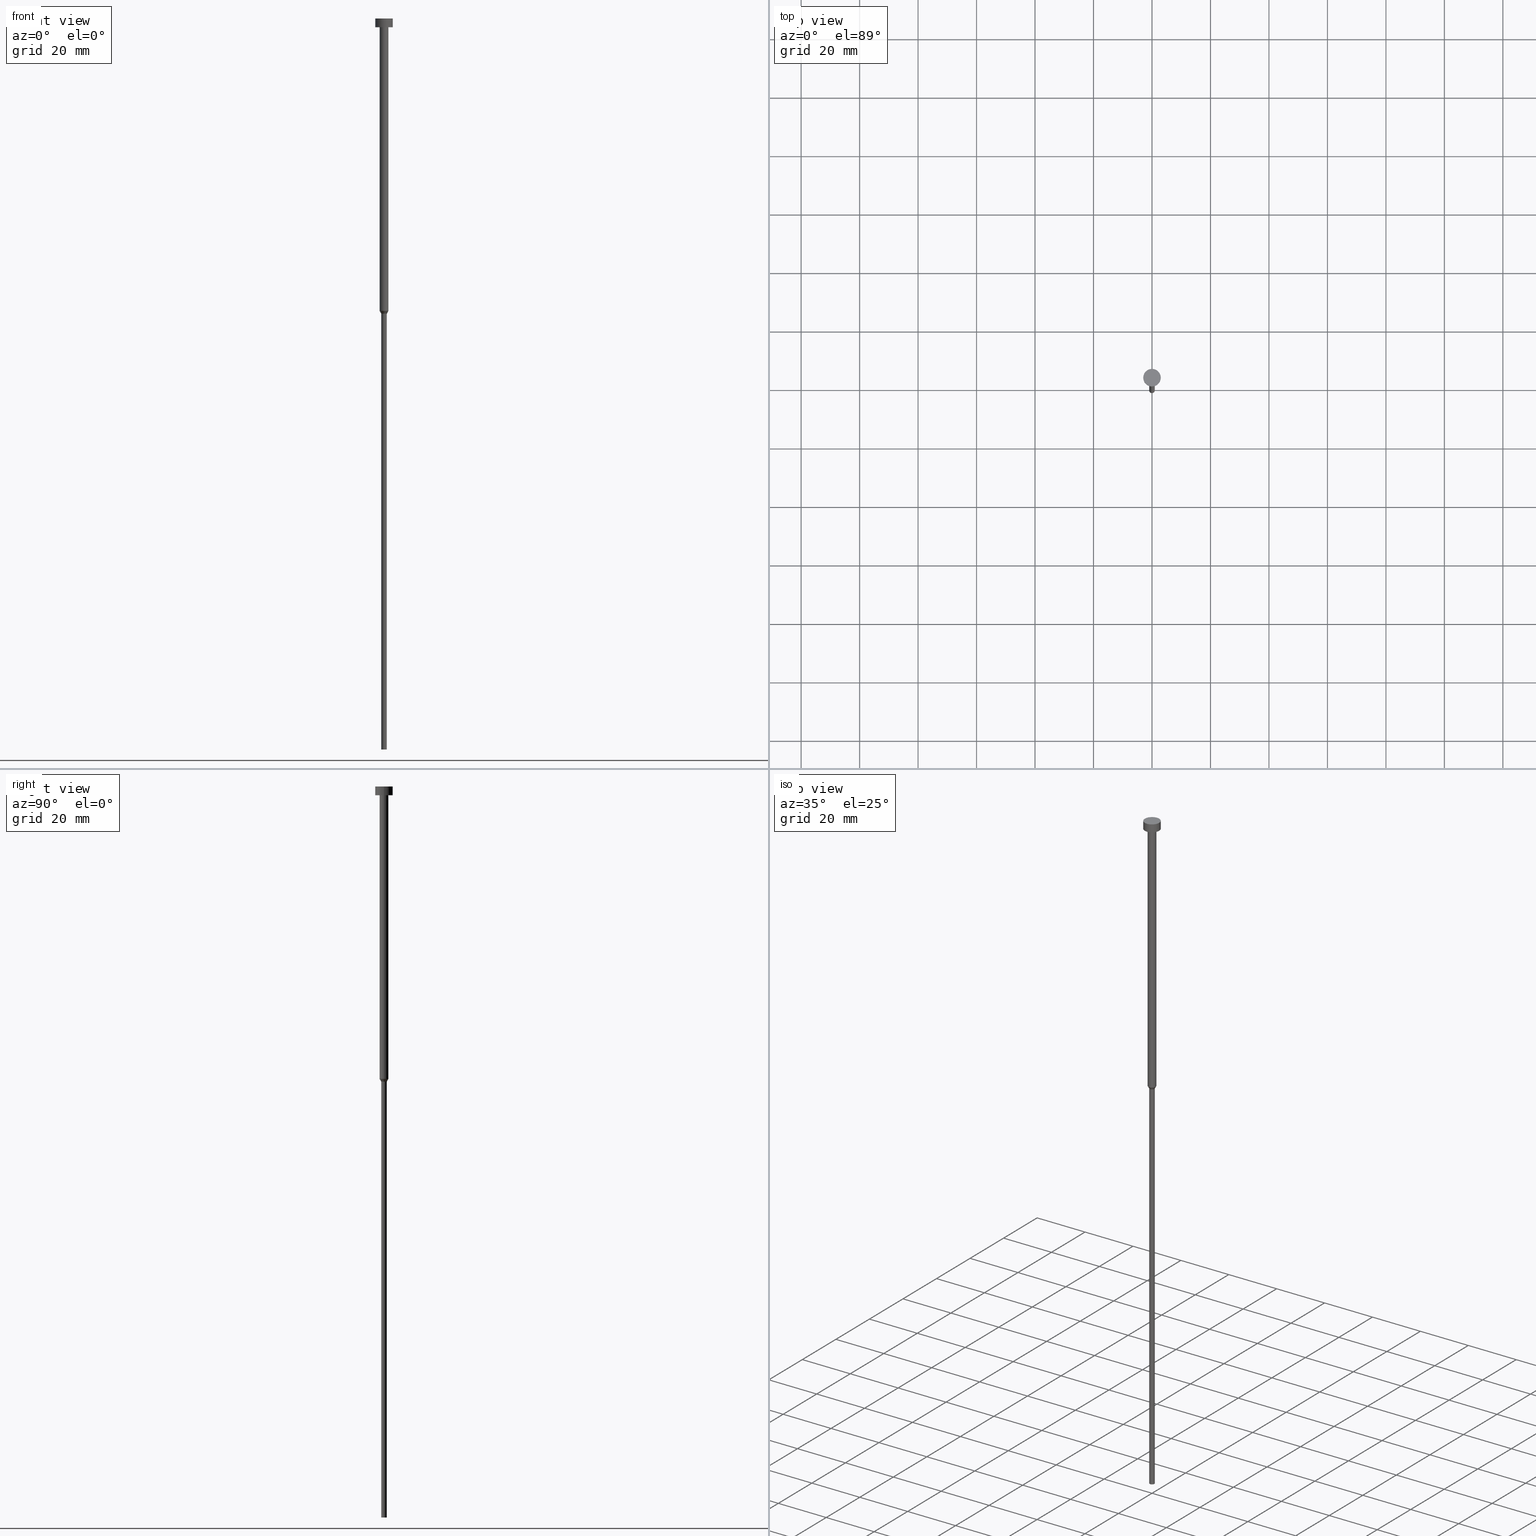
[diagram: canonical four-view strip — front | top / right | iso, engineering-drawing reading convention]
A machine part, canonical four-view strip (front | top / right | iso — engineering-drawing reading convention). The complete STEP part file that produces these views, byte-faithful:
ISO-10303-21;
HEADER;
FILE_DESCRIPTION (( 'STEP AP203' ),
    '1' );
FILE_NAME ('a4c9.STEP',
    '2023-02-13T09:01:24',
    ( '' ),
    ( '' ),
    'SwSTEP 2.0',
    'SolidWorks 2019',
    '' );
FILE_SCHEMA (( 'CONFIG_CONTROL_DESIGN' ));
ENDSEC;

DATA;
#1 = ORIENTED_EDGE ( 'NONE', *, *, #194, .T. ) ;
#2 = MANIFOLD_SOLID_BREP ( 'Rotovat1', #221 ) ;
#3 = CARTESIAN_POINT ( 'NONE',  ( 0.000000000000000000, 0.000000000000000000, -100.0000000000000000 ) ) ;
#4 = DATE_TIME_ROLE ( 'creation_date' ) ;
#5 = LINE ( 'NONE', #98, #318 ) ;
#6 = ORIENTED_EDGE ( 'NONE', *, *, #353, .T. ) ;
#7 = EDGE_CURVE ( 'NONE', #134, #35, #20, .T. ) ;
#8 = CIRCLE ( 'NONE', #208, 1.500000000000000000 ) ;
#9 = EDGE_LOOP ( 'NONE', ( #259, #47 ) ) ;
#10 = VECTOR ( 'NONE', #306, 1000.000000000000000 ) ;
#11 = DIRECTION ( 'NONE',  ( 1.000000000000000000, 0.000000000000000000, 0.000000000000000000 ) ) ;
#12 = CARTESIAN_POINT ( 'NONE',  ( 0.9500000000000000666, 0.000000000000000000, -100.9526279441628702 ) ) ;
#13 = FACE_OUTER_BOUND ( 'NONE', #331, .T. ) ;
#14 = ORIENTED_EDGE ( 'NONE', *, *, #270, .F. ) ;
#15 = ADVANCED_FACE ( 'NONE', ( #265 ), #146, .T. ) ;
#16 = DIRECTION ( 'NONE',  ( -0.000000000000000000, -0.000000000000000000, 1.000000000000000000 ) ) ;
#17 = CIRCLE ( 'NONE', #215, 1.500000000000000000 ) ;
#18 = ORIENTED_EDGE ( 'NONE', *, *, #7, .T. ) ;
#19 = EDGE_CURVE ( 'NONE', #151, #254, #354, .T. ) ;
#20 = LINE ( 'NONE', #65, #23 ) ;
#21 = ORIENTED_EDGE ( 'NONE', *, *, #204, .F. ) ;
#22 = DIRECTION ( 'NONE',  ( 1.000000000000000000, 0.000000000000000000, 0.000000000000000000 ) ) ;
#23 = VECTOR ( 'NONE', #169, 1000.000000000000000 ) ;
#24 = DIRECTION ( 'NONE',  ( -0.000000000000000000, -0.000000000000000000, 1.000000000000000000 ) ) ;
#25 = AXIS2_PLACEMENT_3D ( 'NONE', #216, #292, #87 ) ;
#26 = LINE ( 'NONE', #323, #286 ) ;
#27 = DIRECTION ( 'NONE',  ( 0.5000000000000046629, 0.000000000000000000, 0.8660254037844359321 ) ) ;
#28 = FACE_OUTER_BOUND ( 'NONE', #200, .T. ) ;
#29 = PRODUCT_RELATED_PRODUCT_CATEGORY ( 'detail', '', ( #59 ) ) ;
#30 = CARTESIAN_POINT ( 'NONE',  ( 0.000000000000000000, -3.000000000000000000, -3.000000000000000888 ) ) ;
#31 = CARTESIAN_POINT ( 'NONE',  ( -3.000000000000000000, 3.673940397442059868E-16, -3.673940397442059868E-16 ) ) ;
#32 = VECTOR ( 'NONE', #24, 1000.000000000000000 ) ;
#33 = LOCAL_TIME ( 10, 1, 24.00000000000000000, #272 ) ;
#34 = DIRECTION ( 'NONE',  ( 1.000000000000000000, 0.000000000000000000, 0.000000000000000000 ) ) ;
#35 = VERTEX_POINT ( 'NONE', #69 ) ;
#36 = DIRECTION ( 'NONE',  ( 1.000000000000000000, 0.000000000000000000, 0.000000000000000000 ) ) ;
#37 = DIRECTION ( 'NONE',  ( 0.000000000000000000, -0.000000000000000000, 1.000000000000000000 ) ) ;
#38 = DIRECTION ( 'NONE',  ( -0.000000000000000000, -0.000000000000000000, 1.000000000000000000 ) ) ;
#39 = CALENDAR_DATE ( 2023, 13, 2 ) ;
#40 = VERTEX_POINT ( 'NONE', #31 ) ;
#41 = DIRECTION ( 'NONE',  ( -0.5000000000000046629, 6.123233995736822735E-17, 0.8660254037844359321 ) ) ;
#42 = APPROVAL_ROLE ( '' ) ;
#43 = AXIS2_PLACEMENT_3D ( 'NONE', #105, #333, #247 ) ;
#44 = VERTEX_POINT ( 'NONE', #212 ) ;
#45 = AXIS2_PLACEMENT_3D ( 'NONE', #152, #336, #250 ) ;
#46 = APPROVAL_STATUS ( 'not_yet_approved' ) ;
#47 = ORIENTED_EDGE ( 'NONE', *, *, #67, .T. ) ;
#48 = EDGE_CURVE ( 'NONE', #44, #227, #26, .T. ) ;
#49 = DATE_AND_TIME ( #99, #33 ) ;
#50 = AXIS2_PLACEMENT_3D ( 'NONE', #174, #37, #100 ) ;
#51 = APPROVAL_DATE_TIME ( #282, #77 ) ;
#52 =( GEOMETRIC_REPRESENTATION_CONTEXT ( 3 ) GLOBAL_UNCERTAINTY_ASSIGNED_CONTEXT ( ( #107 ) ) GLOBAL_UNIT_ASSIGNED_CONTEXT ( ( #224, #235, #207 ) ) REPRESENTATION_CONTEXT ( 'NONE', 'WORKASPACE' ) );
#53 = DIRECTION ( 'NONE',  ( -0.000000000000000000, -0.000000000000000000, 1.000000000000000000 ) ) ;
#54 = ADVANCED_FACE ( 'NONE', ( #291 ), #120, .T. ) ;
#55 = ORIENTED_EDGE ( 'NONE', *, *, #225, .T. ) ;
#56 = PERSON_AND_ORGANIZATION_ROLE ( 'design_owner' ) ;
#57 = ORIENTED_EDGE ( 'NONE', *, *, #302, .T. ) ;
#58 = CARTESIAN_POINT ( 'NONE',  ( 0.000000000000000000, 0.000000000000000000, 0.000000000000000000 ) ) ;
#59 = PRODUCT ( 'a4c9', 'a4c9', '', ( #83 ) ) ;
#60 = CARTESIAN_POINT ( 'NONE',  ( 0.9499999999999998446, 0.000000000000000000, -250.0000000000000000 ) ) ;
#61 = EDGE_CURVE ( 'NONE', #263, #134, #317, .T. ) ;
#62 = DIRECTION ( 'NONE',  ( -0.000000000000000000, -0.000000000000000000, 1.000000000000000000 ) ) ;
#63 = CARTESIAN_POINT ( 'NONE',  ( 3.000000000000000000, 0.000000000000000000, 0.000000000000000000 ) ) ;
#64 = CIRCLE ( 'NONE', #190, 0.9500000000000000666 ) ;
#65 = CARTESIAN_POINT ( 'NONE',  ( 1.500000000000000000, 0.000000000000000000, 0.000000000000000000 ) ) ;
#66 = CARTESIAN_POINT ( 'NONE',  ( 0.000000000000000000, 0.000000000000000000, -250.0000000000000000 ) ) ;
#67 = EDGE_CURVE ( 'NONE', #40, #254, #136, .T. ) ;
#68 = DIRECTION ( 'NONE',  ( 1.000000000000000000, 0.000000000000000000, 0.000000000000000000 ) ) ;
#69 = CARTESIAN_POINT ( 'NONE',  ( 1.500000000000000000, 0.000000000000000000, -3.000000000000000888 ) ) ;
#70 = CALENDAR_DATE ( 2023, 13, 2 ) ;
#71 = CIRCLE ( 'NONE', #86, 1.500000000000000000 ) ;
#72 = PLANE ( 'NONE',  #50 ) ;
#73 = EDGE_LOOP ( 'NONE', ( #108, #85, #320, #79 ) ) ;
#74 = CARTESIAN_POINT ( 'NONE',  ( 0.000000000000000000, 0.000000000000000000, 0.000000000000000000 ) ) ;
#75 = PERSON_AND_ORGANIZATION ( #113, #342 ) ;
#76 = ORIENTED_EDGE ( 'NONE', *, *, #234, .T. ) ;
#77 = APPROVAL ( #231, 'NEUR�EN�' ) ;
#78 = LOCAL_TIME ( 10, 1, 24.00000000000000000, #205 ) ;
#79 = ORIENTED_EDGE ( 'NONE', *, *, #67, .F. ) ;
#80 = APPROVAL_STATUS ( 'not_yet_approved' ) ;
#81 = CARTESIAN_POINT ( 'NONE',  ( 0.000000000000000000, 0.000000000000000000, -3.673940397442059868E-16 ) ) ;
#82 = AXIS2_PLACEMENT_3D ( 'NONE', #338, #133, #226 ) ;
#83 = MECHANICAL_CONTEXT ( 'NONE', #141, 'mechanical' ) ;
#84 = CIRCLE ( 'NONE', #191, 3.000000000000000000 ) ;
#85 = ORIENTED_EDGE ( 'NONE', *, *, #327, .T. ) ;
#86 = AXIS2_PLACEMENT_3D ( 'NONE', #179, #269, #126 ) ;
#87 = DIRECTION ( 'NONE',  ( 1.000000000000000000, 0.000000000000000000, 0.000000000000000000 ) ) ;
#88 = ADVANCED_FACE ( 'NONE', ( #28 ), #297, .T. ) ;
#89 = AXIS2_PLACEMENT_3D ( 'NONE', #58, #142, #149 ) ;
#90 = DIRECTION ( 'NONE',  ( -0.000000000000000000, -0.000000000000000000, 1.000000000000000000 ) ) ;
#91 = ORIENTED_EDGE ( 'NONE', *, *, #213, .F. ) ;
#92 = CARTESIAN_POINT ( 'NONE',  ( 0.000000000000000000, 0.000000000000000000, -3.673940397442059868E-16 ) ) ;
#93 = ORIENTED_EDGE ( 'NONE', *, *, #194, .F. ) ;
#94 = PRODUCT_DEFINITION ( 'NEZN�M�', '', #260, #137 ) ;
#95 = CIRCLE ( 'NONE', #139, 3.000000000000000000 ) ;
#96 = CC_DESIGN_APPROVAL ( #77, ( #94 ) ) ;
#97 = CARTESIAN_POINT ( 'NONE',  ( 1.500000000000000000, 0.000000000000000000, -100.0000000000000000 ) ) ;
#98 = CARTESIAN_POINT ( 'NONE',  ( -1.500000000000000000, 1.836970198721029934E-16, -100.0000000000000000 ) ) ;
#99 = CALENDAR_DATE ( 2023, 13, 2 ) ;
#100 = DIRECTION ( 'NONE',  ( 1.000000000000000000, 0.000000000000000000, 0.000000000000000000 ) ) ;
#101 = ORIENTED_EDGE ( 'NONE', *, *, #130, .F. ) ;
#102 = LINE ( 'NONE', #131, #10 ) ;
#103 = CC_DESIGN_PERSON_AND_ORGANIZATION_ASSIGNMENT ( #198, #104, ( #260 ) ) ;
#104 = PERSON_AND_ORGANIZATION_ROLE ( 'design_supplier' ) ;
#105 = CARTESIAN_POINT ( 'NONE',  ( 0.000000000000000000, 0.000000000000000000, 0.000000000000000000 ) ) ;
#106 = AXIS2_PLACEMENT_3D ( 'NONE', #110, #273, #252 ) ;
#107 = UNCERTAINTY_MEASURE_WITH_UNIT (LENGTH_MEASURE( 1.000000000000000082E-05 ), #224, 'distance_accuracy_value', 'NONE');
#108 = ORIENTED_EDGE ( 'NONE', *, *, #234, .F. ) ;
#109 = AXIS2_PLACEMENT_3D ( 'NONE', #311, #262, #22 ) ;
#110 = CARTESIAN_POINT ( 'NONE',  ( 0.000000000000000000, 0.000000000000000000, -250.0000000000000000 ) ) ;
#111 = PERSON_AND_ORGANIZATION ( #113, #342 ) ;
#112 = ORIENTED_EDGE ( 'NONE', *, *, #213, .T. ) ;
#113 = PERSON ( 'NEUR�EN�', 'NEUR�EN�', 'NEUR�EN�', ('NEUR�EN�'), ('NEUR�EN�'), ('NEUR�EN�') ) ;
#114 = ADVANCED_FACE ( 'NONE', ( #246 ), #72, .T. ) ;
#115 = AXIS2_PLACEMENT_3D ( 'NONE', #220, #328, #150 ) ;
#116 = CC_DESIGN_PERSON_AND_ORGANIZATION_ASSIGNMENT ( #308, #233, ( #94 ) ) ;
#117 = DIRECTION ( 'NONE',  ( -0.000000000000000000, -0.000000000000000000, 1.000000000000000000 ) ) ;
#118 = CARTESIAN_POINT ( 'NONE',  ( 0.000000000000000000, 0.000000000000000000, 0.000000000000000000 ) ) ;
#119 = DIRECTION ( 'NONE',  ( 0.000000000000000000, 0.000000000000000000, -1.000000000000000000 ) ) ;
#120 = CYLINDRICAL_SURFACE ( 'NONE', #25, 1.500000000000000000 ) ;
#121 = EDGE_LOOP ( 'NONE', ( #315, #237 ) ) ;
#122 = CYLINDRICAL_SURFACE ( 'NONE', #43, 0.9499999999999999556 ) ;
#123 = EDGE_CURVE ( 'NONE', #151, #181, #95, .T. ) ;
#124 = DIRECTION ( 'NONE',  ( -0.000000000000000000, -0.000000000000000000, 1.000000000000000000 ) ) ;
#125 = ORIENTED_EDGE ( 'NONE', *, *, #61, .T. ) ;
#126 = DIRECTION ( 'NONE',  ( 1.000000000000000000, 0.000000000000000000, 0.000000000000000000 ) ) ;
#127 = CIRCLE ( 'NONE', #166, 0.9499999999999998446 ) ;
#128 = CONICAL_SURFACE ( 'NONE', #115, 1.500000000000000000, 0.5235987755983042558 ) ;
#129 = FACE_OUTER_BOUND ( 'NONE', #261, .T. ) ;
#130 = EDGE_CURVE ( 'NONE', #263, #209, #258, .T. ) ;
#131 = CARTESIAN_POINT ( 'NONE',  ( 0.9499999999999999556, 0.000000000000000000, 0.000000000000000000 ) ) ;
#132 = DATE_TIME_ROLE ( 'classification_date' ) ;
#133 = DIRECTION ( 'NONE',  ( -0.000000000000000000, -0.000000000000000000, 1.000000000000000000 ) ) ;
#134 = VERTEX_POINT ( 'NONE', #97 ) ;
#135 = APPROVAL_DATE_TIME ( #185, #219 ) ;
#136 = CIRCLE ( 'NONE', #283, 3.000000000000000000 ) ;
#137 = DESIGN_CONTEXT ( 'detailed design', #249, 'design' ) ;
#138 = APPLICATION_PROTOCOL_DEFINITION ( 'international standard', 'config_control_design', 1994, #249 ) ;
#139 = AXIS2_PLACEMENT_3D ( 'NONE', #300, #16, #178 ) ;
#140 = ADVANCED_FACE ( 'NONE', ( #13 ), #153, .T. ) ;
#141 = APPLICATION_CONTEXT ( 'configuration controlled 3d designs of mechanical parts and assemblies' ) ;
#142 = DIRECTION ( 'NONE',  ( -0.000000000000000000, -0.000000000000000000, 1.000000000000000000 ) ) ;
#143 = CC_DESIGN_SECURITY_CLASSIFICATION ( #229, ( #260 ) ) ;
#144 = FACE_OUTER_BOUND ( 'NONE', #188, .T. ) ;
#145 = CARTESIAN_POINT ( 'NONE',  ( 0.000000000000000000, 0.000000000000000000, 0.000000000000000000 ) ) ;
#146 = CYLINDRICAL_SURFACE ( 'NONE', #89, 3.000000000000000000 ) ;
#147 = VECTOR ( 'NONE', #307, 1000.000000000000000 ) ;
#148 = CC_DESIGN_PERSON_AND_ORGANIZATION_ASSIGNMENT ( #111, #56, ( #59 ) ) ;
#149 = DIRECTION ( 'NONE',  ( 1.000000000000000000, 0.000000000000000000, 0.000000000000000000 ) ) ;
#150 = DIRECTION ( 'NONE',  ( 1.000000000000000000, 0.000000000000000000, 0.000000000000000000 ) ) ;
#151 = VERTEX_POINT ( 'NONE', #304 ) ;
#152 = CARTESIAN_POINT ( 'NONE',  ( 0.000000000000000000, 0.000000000000000000, -100.0000000000000000 ) ) ;
#153 = PLANE ( 'NONE',  #106 ) ;
#154 = ORIENTED_EDGE ( 'NONE', *, *, #130, .T. ) ;
#155 = CARTESIAN_POINT ( 'NONE',  ( -1.500000000000000000, 1.836970198721029934E-16, -100.0000000000000000 ) ) ;
#156 = AXIS2_PLACEMENT_3D ( 'NONE', #30, #119, #293 ) ;
#157 = LOCAL_TIME ( 10, 1, 24.00000000000000000, #337 ) ;
#158 = EDGE_LOOP ( 'NONE', ( #1, #218, #335, #206 ) ) ;
#159 = ORIENTED_EDGE ( 'NONE', *, *, #290, .T. ) ;
#160 = ORIENTED_EDGE ( 'NONE', *, *, #302, .F. ) ;
#161 = SHAPE_DEFINITION_REPRESENTATION ( #313, #352 ) ;
#162 = AXIS2_PLACEMENT_3D ( 'NONE', #172, #330, #192 ) ;
#163 = EDGE_LOOP ( 'NONE', ( #285, #76, #310, #314 ) ) ;
#164 = EDGE_CURVE ( 'NONE', #44, #232, #341, .T. ) ;
#165 = CARTESIAN_POINT ( 'NONE',  ( -3.000000000000000000, 3.673940397442059868E-16, 0.000000000000000000 ) ) ;
#166 = AXIS2_PLACEMENT_3D ( 'NONE', #66, #53, #236 ) ;
#167 = DIRECTION ( 'NONE',  ( 1.000000000000000000, 0.000000000000000000, 0.000000000000000000 ) ) ;
#168 = CONICAL_SURFACE ( 'NONE', #45, 1.500000000000000000, 0.5235987755983042558 ) ;
#169 = DIRECTION ( 'NONE',  ( -0.000000000000000000, -0.000000000000000000, 1.000000000000000000 ) ) ;
#170 = LINE ( 'NONE', #240, #228 ) ;
#171 = EDGE_CURVE ( 'NONE', #254, #40, #266, .T. ) ;
#172 = CARTESIAN_POINT ( 'NONE',  ( 0.000000000000000000, 0.000000000000000000, -100.0000000000000000 ) ) ;
#173 = APPROVAL_PERSON_ORGANIZATION ( #275, #219, #42 ) ;
#174 = CARTESIAN_POINT ( 'NONE',  ( 0.000000000000000000, 0.000000000000000000, -1.836970198721029934E-16 ) ) ;
#175 = DIRECTION ( 'NONE',  ( 1.000000000000000000, 0.000000000000000000, 0.000000000000000000 ) ) ;
#176 = ADVANCED_FACE ( 'NONE', ( #340, #186 ), #248, .T. ) ;
#177 = CALENDAR_DATE ( 2023, 13, 2 ) ;
#178 = DIRECTION ( 'NONE',  ( 1.000000000000000000, 0.000000000000000000, 0.000000000000000000 ) ) ;
#179 = CARTESIAN_POINT ( 'NONE',  ( 0.000000000000000000, 0.000000000000000000, -3.000000000000000888 ) ) ;
#180 = DIRECTION ( 'NONE',  ( -0.000000000000000000, -0.000000000000000000, 1.000000000000000000 ) ) ;
#181 = VERTEX_POINT ( 'NONE', #351 ) ;
#182 = AXIS2_PLACEMENT_3D ( 'NONE', #118, #326, #332 ) ;
#183 = ORIENTED_EDGE ( 'NONE', *, *, #164, .F. ) ;
#184 = CC_DESIGN_DATE_AND_TIME_ASSIGNMENT ( #294, #4, ( #94 ) ) ;
#185 = DATE_AND_TIME ( #39, #157 ) ;
#186 = FACE_OUTER_BOUND ( 'NONE', #344, .T. ) ;
#187 = CC_DESIGN_PERSON_AND_ORGANIZATION_ASSIGNMENT ( #75, #251, ( #260 ) ) ;
#188 = EDGE_LOOP ( 'NONE', ( #101, #125, #18, #21 ) ) ;
#189 = CALENDAR_DATE ( 2023, 13, 2 ) ;
#190 = AXIS2_PLACEMENT_3D ( 'NONE', #350, #62, #167 ) ;
#191 = AXIS2_PLACEMENT_3D ( 'NONE', #253, #124, #11 ) ;
#192 = DIRECTION ( 'NONE',  ( 1.000000000000000000, 0.000000000000000000, 0.000000000000000000 ) ) ;
#193 = LINE ( 'NONE', #165, #32 ) ;
#194 = EDGE_CURVE ( 'NONE', #232, #44, #127, .T. ) ;
#195 = DIRECTION ( 'NONE',  ( -0.000000000000000000, -0.000000000000000000, 1.000000000000000000 ) ) ;
#196 = CARTESIAN_POINT ( 'NONE',  ( 3.000000000000000000, 0.000000000000000000, -3.673940397442059868E-16 ) ) ;
#197 = AXIS2_PLACEMENT_3D ( 'NONE', #74, #217, #274 ) ;
#198 = PERSON_AND_ORGANIZATION ( #113, #342 ) ;
#199 = FACE_OUTER_BOUND ( 'NONE', #305, .T. ) ;
#200 = EDGE_LOOP ( 'NONE', ( #347, #312, #6, #281 ) ) ;
#201 = CARTESIAN_POINT ( 'NONE',  ( 0.000000000000000000, 0.000000000000000000, -100.9526279441628702 ) ) ;
#202 = APPROVAL_DATE_TIME ( #223, #334 ) ;
#203 = LOCAL_TIME ( 10, 1, 24.00000000000000000, #222 ) ;
#204 = EDGE_CURVE ( 'NONE', #209, #35, #8, .T. ) ;
#205 = COORDINATED_UNIVERSAL_TIME_OFFSET ( 1, 0, .AHEAD. ) ;
#206 = ORIENTED_EDGE ( 'NONE', *, *, #353, .F. ) ;
#207 =( NAMED_UNIT ( * ) SI_UNIT ( $, .STERADIAN. ) SOLID_ANGLE_UNIT ( ) );
#208 = AXIS2_PLACEMENT_3D ( 'NONE', #238, #288, #242 ) ;
#209 = VERTEX_POINT ( 'NONE', #289 ) ;
#210 = COORDINATED_UNIVERSAL_TIME_OFFSET ( 1, 0, .AHEAD. ) ;
#211 = CARTESIAN_POINT ( 'NONE',  ( -0.9500000000000001776, 1.163414459189985929E-16, -100.9526279441628702 ) ) ;
#212 = CARTESIAN_POINT ( 'NONE',  ( -0.9499999999999998446, 1.163414459189985682E-16, -250.0000000000000000 ) ) ;
#213 = EDGE_CURVE ( 'NONE', #278, #134, #170, .T. ) ;
#214 = VECTOR ( 'NONE', #117, 1000.000000000000000 ) ;
#215 = AXIS2_PLACEMENT_3D ( 'NONE', #3, #38, #36 ) ;
#216 = CARTESIAN_POINT ( 'NONE',  ( 0.000000000000000000, 0.000000000000000000, 0.000000000000000000 ) ) ;
#217 = DIRECTION ( 'NONE',  ( -0.000000000000000000, -0.000000000000000000, 1.000000000000000000 ) ) ;
#218 = ORIENTED_EDGE ( 'NONE', *, *, #48, .T. ) ;
#219 = APPROVAL ( #80, 'NEUR�EN�' ) ;
#220 = CARTESIAN_POINT ( 'NONE',  ( 0.000000000000000000, 0.000000000000000000, -100.0000000000000000 ) ) ;
#221 = CLOSED_SHELL ( 'NONE', ( #276, #54, #348, #243, #140, #88, #296, #239, #176, #15, #114 ) ) ;
#222 = COORDINATED_UNIVERSAL_TIME_OFFSET ( 1, 0, .AHEAD. ) ;
#223 = DATE_AND_TIME ( #177, #203 ) ;
#224 =( LENGTH_UNIT ( ) NAMED_UNIT ( * ) SI_UNIT ( .MILLI., .METRE. ) );
#225 = EDGE_CURVE ( 'NONE', #278, #227, #64, .T. ) ;
#226 = DIRECTION ( 'NONE',  ( 1.000000000000000000, 0.000000000000000000, 0.000000000000000000 ) ) ;
#227 = VERTEX_POINT ( 'NONE', #211 ) ;
#228 = VECTOR ( 'NONE', #27, 1000.000000000000000 ) ;
#229 = SECURITY_CLASSIFICATION ( '', '', #257 ) ;
#230 = ORIENTED_EDGE ( 'NONE', *, *, #290, .F. ) ;
#231 = APPROVAL_STATUS ( 'not_yet_approved' ) ;
#232 = VERTEX_POINT ( 'NONE', #60 ) ;
#233 = PERSON_AND_ORGANIZATION_ROLE ( 'creator' ) ;
#234 = EDGE_CURVE ( 'NONE', #181, #40, #193, .T. ) ;
#235 =( NAMED_UNIT ( * ) PLANE_ANGLE_UNIT ( ) SI_UNIT ( $, .RADIAN. ) );
#236 = DIRECTION ( 'NONE',  ( 1.000000000000000000, 0.000000000000000000, 0.000000000000000000 ) ) ;
#237 = ORIENTED_EDGE ( 'NONE', *, *, #204, .T. ) ;
#238 = CARTESIAN_POINT ( 'NONE',  ( 0.000000000000000000, 0.000000000000000000, -3.000000000000000888 ) ) ;
#239 = ADVANCED_FACE ( 'NONE', ( #144 ), #244, .T. ) ;
#240 = CARTESIAN_POINT ( 'NONE',  ( 1.500000000000000000, 0.000000000000000000, -100.0000000000000000 ) ) ;
#241 = APPROVAL_PERSON_ORGANIZATION ( #349, #77, #345 ) ;
#242 = DIRECTION ( 'NONE',  ( 1.000000000000000000, 0.000000000000000000, 0.000000000000000000 ) ) ;
#243 = ADVANCED_FACE ( 'NONE', ( #301 ), #122, .T. ) ;
#244 = CYLINDRICAL_SURFACE ( 'NONE', #182, 1.500000000000000000 ) ;
#245 = FACE_OUTER_BOUND ( 'NONE', #163, .T. ) ;
#246 = FACE_OUTER_BOUND ( 'NONE', #9, .T. ) ;
#247 = DIRECTION ( 'NONE',  ( 1.000000000000000000, 0.000000000000000000, 0.000000000000000000 ) ) ;
#248 = PLANE ( 'NONE',  #156 ) ;
#249 = APPLICATION_CONTEXT ( 'configuration controlled 3d designs of mechanical parts and assemblies' ) ;
#250 = DIRECTION ( 'NONE',  ( 1.000000000000000000, 0.000000000000000000, 0.000000000000000000 ) ) ;
#251 = PERSON_AND_ORGANIZATION_ROLE ( 'creator' ) ;
#252 = DIRECTION ( 'NONE',  ( -1.000000000000000000, 0.000000000000000000, -0.000000000000000000 ) ) ;
#253 = CARTESIAN_POINT ( 'NONE',  ( 0.000000000000000000, 0.000000000000000000, -3.000000000000000888 ) ) ;
#254 = VERTEX_POINT ( 'NONE', #196 ) ;
#255 = CYLINDRICAL_SURFACE ( 'NONE', #197, 3.000000000000000000 ) ;
#256 = EDGE_CURVE ( 'NONE', #227, #278, #277, .T. ) ;
#257 = SECURITY_CLASSIFICATION_LEVEL ( 'unclassified' ) ;
#258 = LINE ( 'NONE', #343, #147 ) ;
#259 = ORIENTED_EDGE ( 'NONE', *, *, #171, .T. ) ;
#260 = PRODUCT_DEFINITION_FORMATION_WITH_SPECIFIED_SOURCE ( 'LIBOVOLN�', '', #59, .NOT_KNOWN. ) ;
#261 = EDGE_LOOP ( 'NONE', ( #55, #57, #230, #91 ) ) ;
#262 = DIRECTION ( 'NONE',  ( 0.000000000000000000, 0.000000000000000000, 1.000000000000000000 ) ) ;
#263 = VERTEX_POINT ( 'NONE', #155 ) ;
#264 = CC_DESIGN_APPROVAL ( #334, ( #260 ) ) ;
#265 = FACE_OUTER_BOUND ( 'NONE', #73, .T. ) ;
#266 = CIRCLE ( 'NONE', #268, 3.000000000000000000 ) ;
#267 = CC_DESIGN_PERSON_AND_ORGANIZATION_ASSIGNMENT ( #309, #299, ( #229 ) ) ;
#268 = AXIS2_PLACEMENT_3D ( 'NONE', #81, #180, #280 ) ;
#269 = DIRECTION ( 'NONE',  ( -0.000000000000000000, -0.000000000000000000, 1.000000000000000000 ) ) ;
#270 = EDGE_CURVE ( 'NONE', #35, #209, #71, .T. ) ;
#271 = ORIENTED_EDGE ( 'NONE', *, *, #61, .F. ) ;
#272 = COORDINATED_UNIVERSAL_TIME_OFFSET ( 1, 0, .AHEAD. ) ;
#273 = DIRECTION ( 'NONE',  ( 0.000000000000000000, 0.000000000000000000, -1.000000000000000000 ) ) ;
#274 = DIRECTION ( 'NONE',  ( 1.000000000000000000, 0.000000000000000000, 0.000000000000000000 ) ) ;
#275 = PERSON_AND_ORGANIZATION ( #113, #342 ) ;
#276 = ADVANCED_FACE ( 'NONE', ( #245 ), #255, .T. ) ;
#277 = CIRCLE ( 'NONE', #325, 0.9500000000000000666 ) ;
#278 = VERTEX_POINT ( 'NONE', #12 ) ;
#279 = ORIENTED_EDGE ( 'NONE', *, *, #123, .F. ) ;
#280 = DIRECTION ( 'NONE',  ( 1.000000000000000000, 0.000000000000000000, 0.000000000000000000 ) ) ;
#281 = ORIENTED_EDGE ( 'NONE', *, *, #256, .F. ) ;
#282 = DATE_AND_TIME ( #189, #78 ) ;
#283 = AXIS2_PLACEMENT_3D ( 'NONE', #92, #90, #68 ) ;
#284 = CC_DESIGN_APPROVAL ( #219, ( #229 ) ) ;
#285 = ORIENTED_EDGE ( 'NONE', *, *, #123, .T. ) ;
#286 = VECTOR ( 'NONE', #324, 1000.000000000000000 ) ;
#287 = APPROVAL_PERSON_ORGANIZATION ( #329, #334, #303 ) ;
#288 = DIRECTION ( 'NONE',  ( -0.000000000000000000, -0.000000000000000000, 1.000000000000000000 ) ) ;
#289 = CARTESIAN_POINT ( 'NONE',  ( -1.500000000000000000, 1.836970198721029934E-16, -3.000000000000000888 ) ) ;
#290 = EDGE_CURVE ( 'NONE', #134, #263, #17, .T. ) ;
#291 = FACE_OUTER_BOUND ( 'NONE', #346, .T. ) ;
#292 = DIRECTION ( 'NONE',  ( -0.000000000000000000, -0.000000000000000000, 1.000000000000000000 ) ) ;
#293 = DIRECTION ( 'NONE',  ( -1.000000000000000000, 0.000000000000000000, -0.000000000000000000 ) ) ;
#294 = DATE_AND_TIME ( #70, #322 ) ;
#295 = ORIENTED_EDGE ( 'NONE', *, *, #7, .F. ) ;
#296 = ADVANCED_FACE ( 'NONE', ( #199 ), #128, .T. ) ;
#297 = CYLINDRICAL_SURFACE ( 'NONE', #321, 0.9499999999999999556 ) ;
#298 = ORIENTED_EDGE ( 'NONE', *, *, #256, .T. ) ;
#299 = PERSON_AND_ORGANIZATION_ROLE ( 'classification_officer' ) ;
#300 = CARTESIAN_POINT ( 'NONE',  ( 0.000000000000000000, 0.000000000000000000, -3.000000000000000888 ) ) ;
#301 = FACE_OUTER_BOUND ( 'NONE', #158, .T. ) ;
#302 = EDGE_CURVE ( 'NONE', #227, #263, #5, .T. ) ;
#303 = APPROVAL_ROLE ( '' ) ;
#304 = CARTESIAN_POINT ( 'NONE',  ( 3.000000000000000000, 0.000000000000000000, -3.000000000000000888 ) ) ;
#305 = EDGE_LOOP ( 'NONE', ( #160, #298, #112, #271 ) ) ;
#306 = DIRECTION ( 'NONE',  ( -0.000000000000000000, -0.000000000000000000, 1.000000000000000000 ) ) ;
#307 = DIRECTION ( 'NONE',  ( -0.000000000000000000, -0.000000000000000000, 1.000000000000000000 ) ) ;
#308 = PERSON_AND_ORGANIZATION ( #113, #342 ) ;
#309 = PERSON_AND_ORGANIZATION ( #113, #342 ) ;
#310 = ORIENTED_EDGE ( 'NONE', *, *, #171, .F. ) ;
#311 = CARTESIAN_POINT ( 'NONE',  ( 0.000000000000000000, 0.000000000000000000, 0.000000000000000000 ) ) ;
#312 = ORIENTED_EDGE ( 'NONE', *, *, #164, .T. ) ;
#313 = PRODUCT_DEFINITION_SHAPE ( 'NONE', 'NONE',  #94 ) ;
#314 = ORIENTED_EDGE ( 'NONE', *, *, #19, .F. ) ;
#315 = ORIENTED_EDGE ( 'NONE', *, *, #270, .T. ) ;
#316 = APPLICATION_PROTOCOL_DEFINITION ( 'international standard', 'config_control_design', 1994, #141 ) ;
#317 = CIRCLE ( 'NONE', #162, 1.500000000000000000 ) ;
#318 = VECTOR ( 'NONE', #41, 1000.000000000000000 ) ;
#319 = ORIENTED_EDGE ( 'NONE', *, *, #327, .F. ) ;
#320 = ORIENTED_EDGE ( 'NONE', *, *, #19, .T. ) ;
#321 = AXIS2_PLACEMENT_3D ( 'NONE', #145, #195, #34 ) ;
#322 = LOCAL_TIME ( 10, 1, 24.00000000000000000, #210 ) ;
#323 = CARTESIAN_POINT ( 'NONE',  ( -0.9499999999999999556, 1.163414459189985682E-16, 0.000000000000000000 ) ) ;
#324 = DIRECTION ( 'NONE',  ( -0.000000000000000000, -0.000000000000000000, 1.000000000000000000 ) ) ;
#325 = AXIS2_PLACEMENT_3D ( 'NONE', #201, #339, #175 ) ;
#326 = DIRECTION ( 'NONE',  ( -0.000000000000000000, -0.000000000000000000, 1.000000000000000000 ) ) ;
#327 = EDGE_CURVE ( 'NONE', #181, #151, #84, .T. ) ;
#328 = DIRECTION ( 'NONE',  ( -0.000000000000000000, -0.000000000000000000, 1.000000000000000000 ) ) ;
#329 = PERSON_AND_ORGANIZATION ( #113, #342 ) ;
#330 = DIRECTION ( 'NONE',  ( -0.000000000000000000, -0.000000000000000000, 1.000000000000000000 ) ) ;
#331 = EDGE_LOOP ( 'NONE', ( #93, #183 ) ) ;
#332 = DIRECTION ( 'NONE',  ( 1.000000000000000000, 0.000000000000000000, 0.000000000000000000 ) ) ;
#333 = DIRECTION ( 'NONE',  ( -0.000000000000000000, -0.000000000000000000, 1.000000000000000000 ) ) ;
#334 = APPROVAL ( #46, 'NEUR�EN�' ) ;
#335 = ORIENTED_EDGE ( 'NONE', *, *, #225, .F. ) ;
#336 = DIRECTION ( 'NONE',  ( -0.000000000000000000, -0.000000000000000000, 1.000000000000000000 ) ) ;
#337 = COORDINATED_UNIVERSAL_TIME_OFFSET ( 1, 0, .AHEAD. ) ;
#338 = CARTESIAN_POINT ( 'NONE',  ( 0.000000000000000000, 0.000000000000000000, -250.0000000000000000 ) ) ;
#339 = DIRECTION ( 'NONE',  ( -0.000000000000000000, -0.000000000000000000, 1.000000000000000000 ) ) ;
#340 = FACE_BOUND ( 'NONE', #121, .T. ) ;
#341 = CIRCLE ( 'NONE', #82, 0.9499999999999998446 ) ;
#342 = ORGANIZATION ( 'NEUR�EN�', 'NEUR�EN�', '' ) ;
#343 = CARTESIAN_POINT ( 'NONE',  ( -1.500000000000000000, 1.836970198721029934E-16, 0.000000000000000000 ) ) ;
#344 = EDGE_LOOP ( 'NONE', ( #279, #319 ) ) ;
#345 = APPROVAL_ROLE ( '' ) ;
#346 = EDGE_LOOP ( 'NONE', ( #159, #154, #14, #295 ) ) ;
#347 = ORIENTED_EDGE ( 'NONE', *, *, #48, .F. ) ;
#348 = ADVANCED_FACE ( 'NONE', ( #129 ), #168, .T. ) ;
#349 = PERSON_AND_ORGANIZATION ( #113, #342 ) ;
#350 = CARTESIAN_POINT ( 'NONE',  ( 0.000000000000000000, 0.000000000000000000, -100.9526279441628702 ) ) ;
#351 = CARTESIAN_POINT ( 'NONE',  ( -3.000000000000000000, 3.673940397442059868E-16, -3.000000000000000888 ) ) ;
#352 = ADVANCED_BREP_SHAPE_REPRESENTATION ( 'a4c9', ( #2, #109 ), #52 ) ;
#353 = EDGE_CURVE ( 'NONE', #232, #278, #102, .T. ) ;
#354 = LINE ( 'NONE', #63, #214 ) ;
#355 = CC_DESIGN_DATE_AND_TIME_ASSIGNMENT ( #49, #132, ( #229 ) ) ;
ENDSEC;
END-ISO-10303-21;
